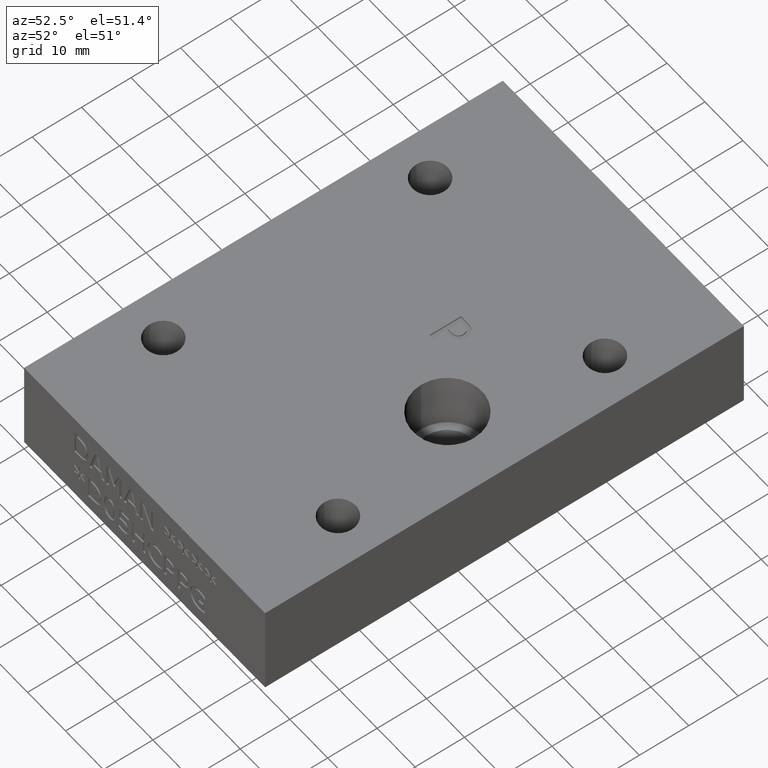
[diagram: clean part render]
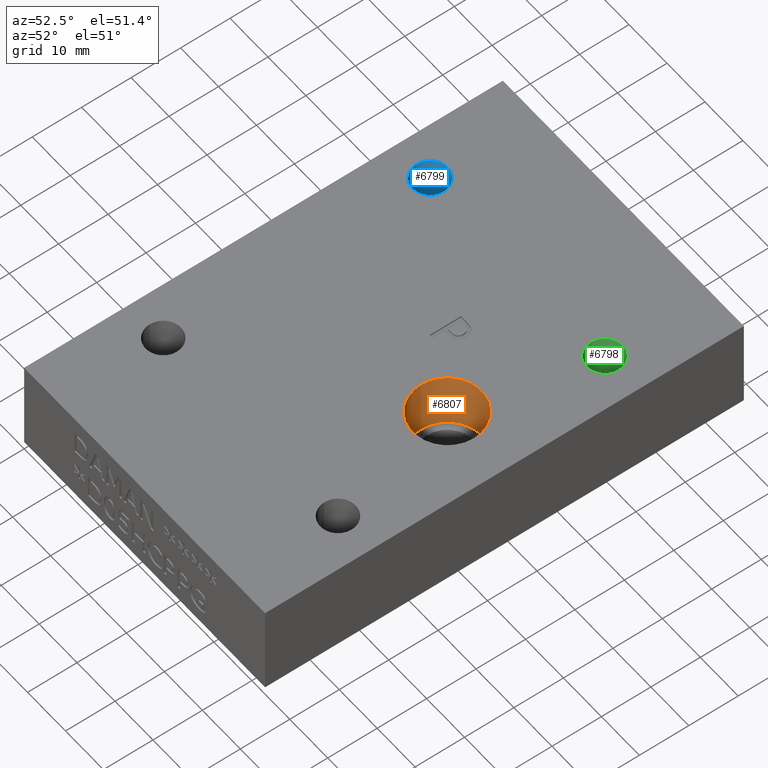
[diagram: same view with three faces highlighted in distinct colors, each labeled with its STEP entity id]
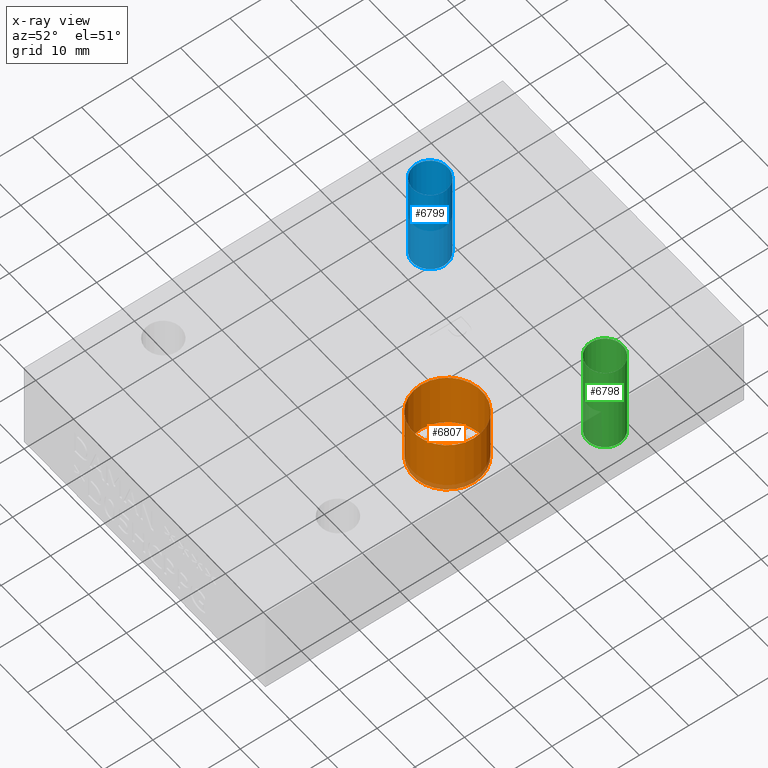
[diagram: x-ray of the same camera — body ghosted, the three highlighted faces saturated]
A machine part, auxiliary view with three faces highlighted in distinct colors.
The next image is the same camera in x-ray (body ghosted, the three faces saturated) — at least one of them is partly hidden behind the body in this view.
Their STEP definitions:

[orange] entity #6807 — the highlighted cylindrical surface (bore or boss wall) has radius 6.9342 mm, axis along (0, 0, 1).
#29=CYLINDRICAL_SURFACE('',#7138,0.273);
#30=CIRCLE('',#7061,0.273);
#31=CIRCLE('',#7062,0.273);
#79=CIRCLE('',#7136,0.273);
#80=CIRCLE('',#7137,0.273);
#571=FACE_OUTER_BOUND('',#972,.T.);
#972=EDGE_LOOP('',(#6185,#6186,#6187,#6188,#6189,#6190));
#1708=LINE('',#11996,#2441);
#2441=VECTOR('',#8488,0.273);
#3232=VERTEX_POINT('',#11834);
#3233=VERTEX_POINT('',#11835);
#3289=VERTEX_POINT('',#11991);
#3290=VERTEX_POINT('',#11992);
#4186=EDGE_CURVE('',#3232,#3233,#30,.T.);
#4187=EDGE_CURVE('',#3233,#3232,#31,.T.);
#4260=EDGE_CURVE('',#3289,#3290,#79,.T.);
#4261=EDGE_CURVE('',#3290,#3289,#80,.T.);
#4262=EDGE_CURVE('',#3290,#3233,#1708,.T.);
#6185=ORIENTED_EDGE('',*,*,#4260,.F.);
#6186=ORIENTED_EDGE('',*,*,#4261,.F.);
#6187=ORIENTED_EDGE('',*,*,#4262,.T.);
#6188=ORIENTED_EDGE('',*,*,#4186,.F.);
#6189=ORIENTED_EDGE('',*,*,#4187,.F.);
#6190=ORIENTED_EDGE('',*,*,#4262,.F.);
#6807=ADVANCED_FACE('',(#571),#29,.F.);
#7061=AXIS2_PLACEMENT_3D('',#11836,#8307,#8308);
#7062=AXIS2_PLACEMENT_3D('',#11837,#8309,#8310);
#7136=AXIS2_PLACEMENT_3D('',#11993,#8482,#8483);
#7137=AXIS2_PLACEMENT_3D('',#11994,#8484,#8485);
#7138=AXIS2_PLACEMENT_3D('',#11995,#8486,#8487);
#8307=DIRECTION('center_axis',(0.,0.,-1.));
#8308=DIRECTION('ref_axis',(1.,0.,0.));
#8309=DIRECTION('center_axis',(0.,0.,-1.));
#8310=DIRECTION('ref_axis',(1.,0.,0.));
#8482=DIRECTION('center_axis',(0.,0.,1.));
#8483=DIRECTION('ref_axis',(1.,0.,0.));
#8484=DIRECTION('center_axis',(0.,0.,1.));
#8485=DIRECTION('ref_axis',(1.,0.,0.));
#8486=DIRECTION('center_axis',(0.,0.,1.));
#8487=DIRECTION('ref_axis',(1.,0.,0.));
#8488=DIRECTION('',(0.,0.,1.));
#11834=CARTESIAN_POINT('',(2.181,1.906,0.75));
#11835=CARTESIAN_POINT('',(1.635,1.906,0.75));
#11836=CARTESIAN_POINT('Origin',(1.908,1.906,0.75));
#11837=CARTESIAN_POINT('Origin',(1.908,1.906,0.75));
#11991=CARTESIAN_POINT('',(2.181,1.906,0.301));
#11992=CARTESIAN_POINT('',(1.635,1.906,0.301));
#11993=CARTESIAN_POINT('Origin',(1.908,1.906,0.301));
#11994=CARTESIAN_POINT('Origin',(1.908,1.906,0.301));
#11995=CARTESIAN_POINT('Origin',(1.908,1.906,0.5255));
#11996=CARTESIAN_POINT('',(1.635,1.906,0.5255));

[blue] entity #6799 — the highlighted cylindrical surface (bore or boss wall) has radius 3.5687 mm, axis along (0, 0, -1).
#23=CYLINDRICAL_SURFACE('',#7124,0.1405);
#34=CIRCLE('',#7065,0.1405);
#40=CIRCLE('',#7075,0.1405);
#41=CIRCLE('',#7076,0.1405);
#563=FACE_OUTER_BOUND('',#963,.T.);
#963=EDGE_LOOP('',(#6149,#6150,#6151,#6152,#6153));
#1703=LINE('',#11971,#2436);
#2436=VECTOR('',#8455,0.1405);
#3236=VERTEX_POINT('',#11842);
#3252=VERTEX_POINT('',#11881);
#3253=VERTEX_POINT('',#11882);
#4190=EDGE_CURVE('',#3236,#3236,#34,.T.);
#4209=EDGE_CURVE('',#3252,#3253,#40,.T.);
#4210=EDGE_CURVE('',#3253,#3252,#41,.T.);
#4251=EDGE_CURVE('',#3236,#3253,#1703,.T.);
#6149=ORIENTED_EDGE('',*,*,#4190,.F.);
#6150=ORIENTED_EDGE('',*,*,#4251,.T.);
#6151=ORIENTED_EDGE('',*,*,#4209,.F.);
#6152=ORIENTED_EDGE('',*,*,#4210,.F.);
#6153=ORIENTED_EDGE('',*,*,#4251,.F.);
#6799=ADVANCED_FACE('',(#563),#23,.F.);
#7065=AXIS2_PLACEMENT_3D('',#11843,#8315,#8316);
#7075=AXIS2_PLACEMENT_3D('',#11883,#8348,#8349);
#7076=AXIS2_PLACEMENT_3D('',#11884,#8350,#8351);
#7124=AXIS2_PLACEMENT_3D('',#11970,#8453,#8454);
#8315=DIRECTION('center_axis',(0.,0.,-1.));
#8316=DIRECTION('ref_axis',(1.,0.,0.));
#8348=DIRECTION('center_axis',(0.,0.,1.));
#8349=DIRECTION('ref_axis',(1.,0.,0.));
#8350=DIRECTION('center_axis',(0.,0.,1.));
#8351=DIRECTION('ref_axis',(1.,0.,0.));
#8453=DIRECTION('center_axis',(0.,0.,-1.));
#8454=DIRECTION('ref_axis',(1.,0.,0.));
#8455=DIRECTION('',(0.,0.,-1.));
#11842=CARTESIAN_POINT('',(0.20325,2.96875,0.75));
#11843=CARTESIAN_POINT('Origin',(0.34375,2.96875,0.75));
#11881=CARTESIAN_POINT('',(0.48425,2.96875,0.));
#11882=CARTESIAN_POINT('',(0.20325,2.96875,0.));
#11883=CARTESIAN_POINT('Origin',(0.34375,2.96875,0.));
#11884=CARTESIAN_POINT('Origin',(0.34375,2.96875,0.));
#11970=CARTESIAN_POINT('Origin',(0.34375,2.96875,0.425));
#11971=CARTESIAN_POINT('',(0.20325,2.96875,0.425));

[green] entity #6798 — the highlighted cylindrical surface (bore or boss wall) has radius 3.5687 mm, axis along (0, 0, -1).
#22=CYLINDRICAL_SURFACE('',#7123,0.1405);
#35=CIRCLE('',#7066,0.1405);
#38=CIRCLE('',#7073,0.1405);
#39=CIRCLE('',#7074,0.1405);
#562=FACE_OUTER_BOUND('',#962,.T.);
#962=EDGE_LOOP('',(#6144,#6145,#6146,#6147,#6148));
#1702=LINE('',#11969,#2435);
#2435=VECTOR('',#8452,0.1405);
#3237=VERTEX_POINT('',#11844);
#3250=VERTEX_POINT('',#11877);
#3251=VERTEX_POINT('',#11878);
#4191=EDGE_CURVE('',#3237,#3237,#35,.T.);
#4207=EDGE_CURVE('',#3250,#3251,#38,.T.);
#4208=EDGE_CURVE('',#3251,#3250,#39,.T.);
#4250=EDGE_CURVE('',#3237,#3251,#1702,.T.);
#6144=ORIENTED_EDGE('',*,*,#4191,.F.);
#6145=ORIENTED_EDGE('',*,*,#4250,.T.);
#6146=ORIENTED_EDGE('',*,*,#4207,.F.);
#6147=ORIENTED_EDGE('',*,*,#4208,.F.);
#6148=ORIENTED_EDGE('',*,*,#4250,.F.);
#6798=ADVANCED_FACE('',(#562),#22,.F.);
#7066=AXIS2_PLACEMENT_3D('',#11845,#8317,#8318);
#7073=AXIS2_PLACEMENT_3D('',#11879,#8344,#8345);
#7074=AXIS2_PLACEMENT_3D('',#11880,#8346,#8347);
#7123=AXIS2_PLACEMENT_3D('',#11968,#8450,#8451);
#8317=DIRECTION('center_axis',(0.,0.,-1.));
#8318=DIRECTION('ref_axis',(1.,0.,0.));
#8344=DIRECTION('center_axis',(0.,0.,1.));
#8345=DIRECTION('ref_axis',(1.,0.,0.));
#8346=DIRECTION('center_axis',(0.,0.,1.));
#8347=DIRECTION('ref_axis',(1.,0.,0.));
#8450=DIRECTION('center_axis',(0.,0.,-1.));
#8451=DIRECTION('ref_axis',(1.,0.,0.));
#8452=DIRECTION('',(0.,0.,-1.));
#11844=CARTESIAN_POINT('',(2.01625,2.96925,0.75));
#11845=CARTESIAN_POINT('Origin',(2.15675,2.96925,0.75));
#11877=CARTESIAN_POINT('',(2.29725,2.96925,0.));
#11878=CARTESIAN_POINT('',(2.01625,2.96925,0.));
#11879=CARTESIAN_POINT('Origin',(2.15675,2.96925,0.));
#11880=CARTESIAN_POINT('Origin',(2.15675,2.96925,0.));
#11968=CARTESIAN_POINT('Origin',(2.15675,2.96925,0.425));
#11969=CARTESIAN_POINT('',(2.01625,2.96925,0.425));